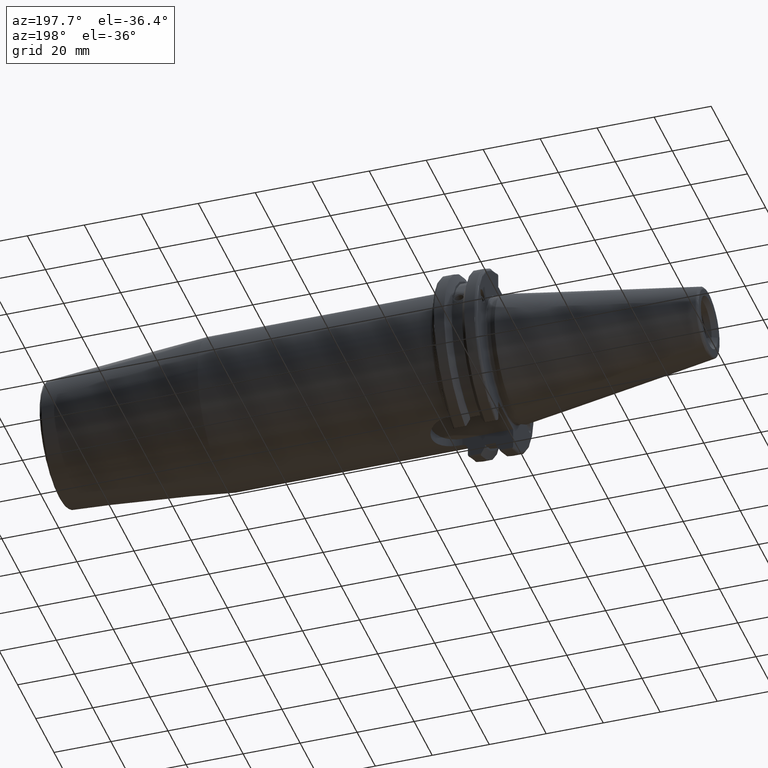
[diagram: clean part render]
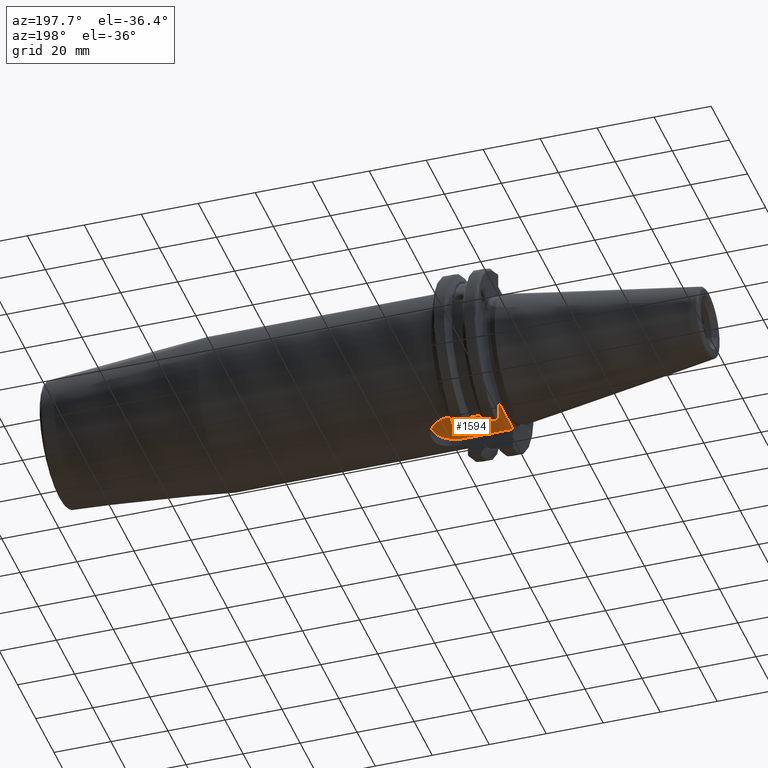
[diagram: same view with one face highlighted and labeled with its STEP entity id]
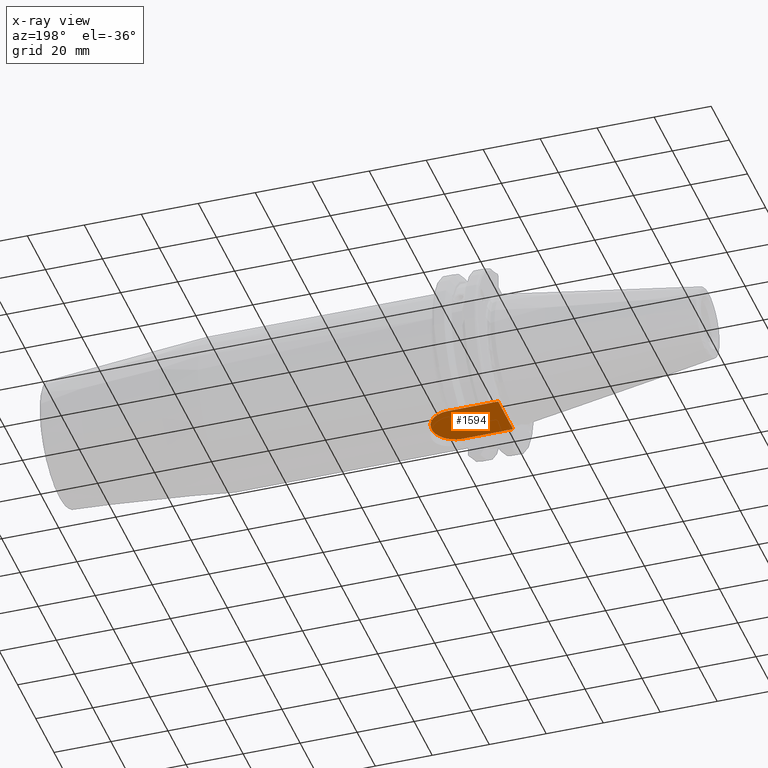
[diagram: x-ray of the same camera — body ghosted, the highlighted face saturated]
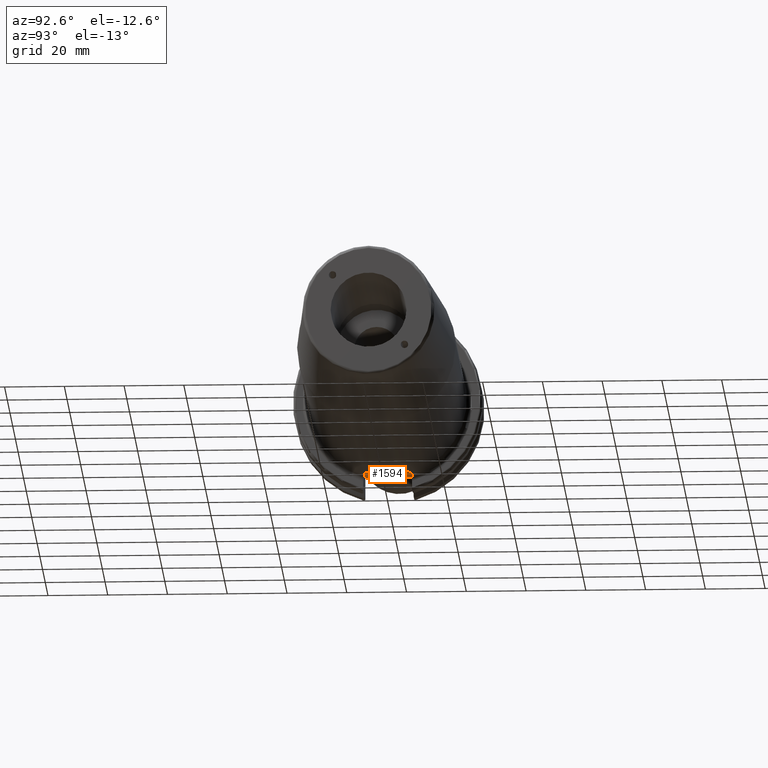
[diagram: same view with one face highlighted and labeled with its STEP entity id]
A machine part, auxiliary view. The second image highlights one B-rep face of the part: STEP entity #1594.
The next image is the same camera in x-ray: the body ghosted, the highlighted face saturated — about 0% of this face is hidden behind the body in this view.
A second angle (auxiliary view) of the same face is appended — the face is thin or edge-on in the first view.
In plain terms, the highlighted planar face has unit normal (0, 0, 1).
Its self-contained STEP definition (entity closure, byte-faithful):
#123=PLANE('',#1796);
#255=FACE_OUTER_BOUND('',#359,.T.);
#359=EDGE_LOOP('',(#1428,#1429,#1430,#1431));
#384=LINE('',#2314,#471);
#414=LINE('',#2737,#501);
#449=LINE('',#3094,#536);
#471=VECTOR('',#1845,10.);
#501=VECTOR('',#1959,10.);
#536=VECTOR('',#2192,10.);
#555=CIRCLE('',#1645,8.1915);
#637=VERTEX_POINT('',#2311);
#638=VERTEX_POINT('',#2313);
#651=VERTEX_POINT('',#2375);
#710=VERTEX_POINT('',#2732);
#799=EDGE_CURVE('',#638,#637,#384,.T.);
#814=EDGE_CURVE('',#637,#651,#555,.T.);
#893=EDGE_CURVE('',#638,#710,#414,.T.);
#1000=EDGE_CURVE('',#651,#710,#449,.T.);
#1428=ORIENTED_EDGE('',*,*,#893,.F.);
#1429=ORIENTED_EDGE('',*,*,#799,.T.);
#1430=ORIENTED_EDGE('',*,*,#814,.T.);
#1431=ORIENTED_EDGE('',*,*,#1000,.T.);
#1594=ADVANCED_FACE('',(#255),#123,.F.);
#1645=AXIS2_PLACEMENT_3D('',#2377,#1856,#1857);
#1796=AXIS2_PLACEMENT_3D('',#3113,#2217,#2218);
#1845=DIRECTION('',(1.,-1.24684619661977E-16,0.));
#1856=DIRECTION('center_axis',(0.,0.,-1.));
#1857=DIRECTION('ref_axis',(0.,1.,0.));
#1959=DIRECTION('',(0.,-1.,0.));
#2192=DIRECTION('',(-1.,-6.23423098309883E-17,0.));
#2217=DIRECTION('center_axis',(0.,0.,1.));
#2218=DIRECTION('ref_axis',(1.,0.,0.));
#2311=CARTESIAN_POINT('',(20.9835,8.193,-22.6));
#2313=CARTESIAN_POINT('',(3.175,8.193,-22.6));
#2314=CARTESIAN_POINT('',(3.175,8.193,-22.6));
#2375=CARTESIAN_POINT('',(20.9835,-8.19,-22.6));
#2377=CARTESIAN_POINT('Origin',(20.9835,0.00149999999999983,-22.6));
#2732=CARTESIAN_POINT('',(3.175,-8.19,-22.6));
#2737=CARTESIAN_POINT('',(3.175,15.87575,-22.6));
#3094=CARTESIAN_POINT('',(20.9835,-8.19,-22.6));
#3113=CARTESIAN_POINT('Origin',(15.7075,-5.55111512312578E-16,-22.6));